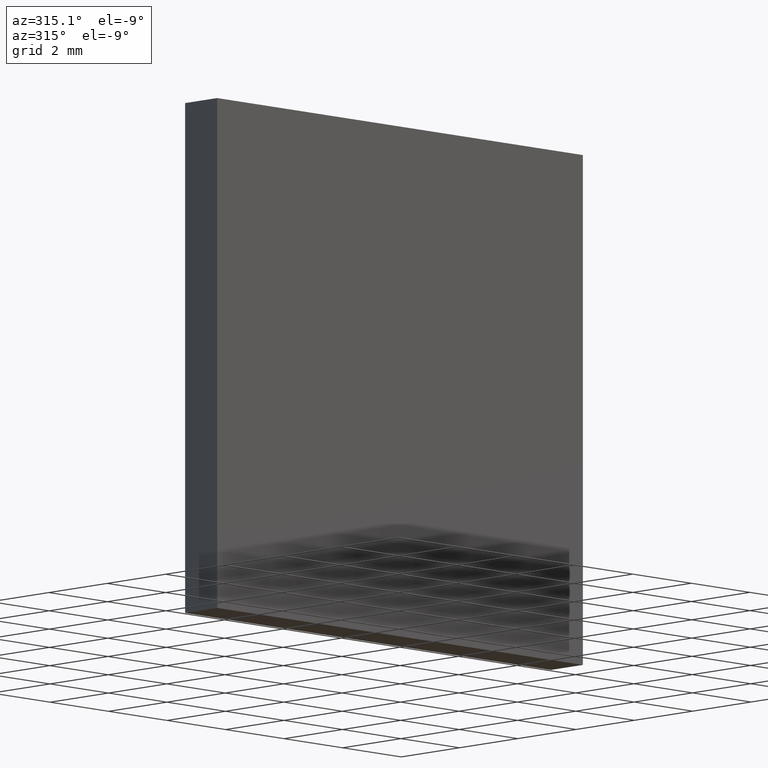
[diagram: clean part render]
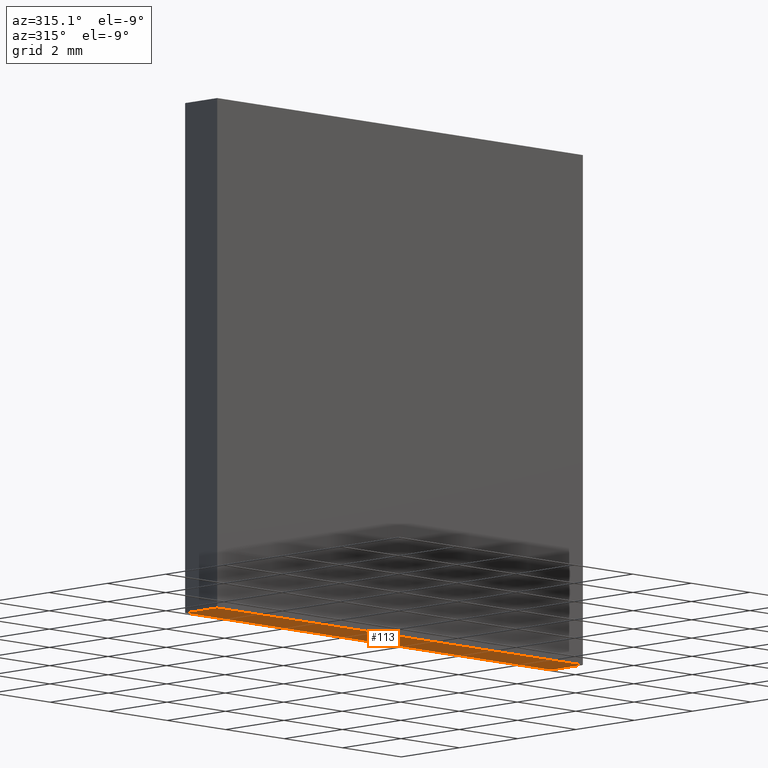
[diagram: same view with one face highlighted and labeled with its STEP entity id]
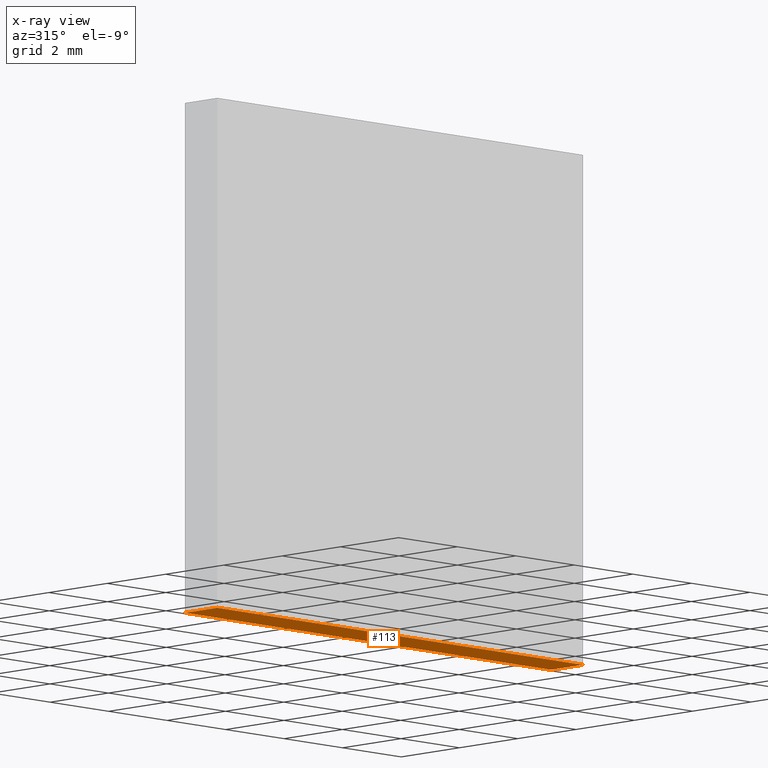
[diagram: x-ray of the same camera — body ghosted, the highlighted face saturated]
A machine part, auxiliary view. The second image highlights one B-rep face of the part: STEP entity #113.
The next image is the same camera in x-ray: the body ghosted, the highlighted face saturated — about 0% of this face is hidden behind the body in this view.
In plain terms, the highlighted planar face has unit normal (0, 0, 1).
Its self-contained STEP definition (entity closure, byte-faithful):
#9 = CARTESIAN_POINT ( 'NONE',  ( -6.250000000000002700, 0.0000000000000000000, -6.250000000000001800 ) ) ;
#11 = CARTESIAN_POINT ( 'NONE',  ( -6.250000000000002700, 1.100000000000000100, -6.250000000000001800 ) ) ;
#19 = CARTESIAN_POINT ( 'NONE',  ( -6.250000000000002700, 1.100000000000000100, -6.250000000000001800 ) ) ;
#25 = VERTEX_POINT ( 'NONE', #94 ) ;
#30 = EDGE_CURVE ( 'NONE', #100, #86, #78, .T. ) ;
#39 = ORIENTED_EDGE ( 'NONE', *, *, #30, .T. ) ;
#40 = CARTESIAN_POINT ( 'NONE',  ( -6.250000000000002700, 1.100000000000000100, -6.250000000000001800 ) ) ;
#41 = LINE ( 'NONE', #11, #104 ) ;
#42 = CARTESIAN_POINT ( 'NONE',  ( 6.249999999999997300, 0.0000000000000000000, -6.250000000000001800 ) ) ;
#50 = CARTESIAN_POINT ( 'NONE',  ( -6.250000000000002700, 0.0000000000000000000, -6.250000000000001800 ) ) ;
#54 = DIRECTION ( 'NONE',  ( -0.0000000000000000000, -1.000000000000000000, -0.0000000000000000000 ) ) ;
#63 = DIRECTION ( 'NONE',  ( 0.0000000000000000000, 0.0000000000000000000, 1.000000000000000000 ) ) ;
#66 = EDGE_CURVE ( 'NONE', #100, #25, #184, .T. ) ;
#69 = VERTEX_POINT ( 'NONE', #9 ) ;
#72 = ORIENTED_EDGE ( 'NONE', *, *, #84, .F. ) ;
#78 = LINE ( 'NONE', #182, #165 ) ;
#79 = DIRECTION ( 'NONE',  ( 1.000000000000000000, 0.0000000000000000000, -0.0000000000000000000 ) ) ;
#84 = EDGE_CURVE ( 'NONE', #25, #69, #41, .T. ) ;
#86 = VERTEX_POINT ( 'NONE', #42 ) ;
#90 = EDGE_LOOP ( 'NONE', ( #171, #72, #190, #39 ) ) ;
#91 = EDGE_CURVE ( 'NONE', #86, #69, #162, .T. ) ;
#94 = CARTESIAN_POINT ( 'NONE',  ( -6.250000000000002700, 1.100000000000000100, -6.250000000000001800 ) ) ;
#99 = FACE_OUTER_BOUND ( 'NONE', #90, .T. ) ;
#100 = VERTEX_POINT ( 'NONE', #146 ) ;
#103 = AXIS2_PLACEMENT_3D ( 'NONE', #19, #63, #79 ) ;
#104 = VECTOR ( 'NONE', #105, 1000.000000000000000 ) ;
#105 = DIRECTION ( 'NONE',  ( -0.0000000000000000000, -1.000000000000000000, -0.0000000000000000000 ) ) ;
#113 = ADVANCED_FACE ( 'NONE', ( #99 ), #116, .F. ) ;
#116 = PLANE ( 'NONE',  #103 ) ;
#129 = DIRECTION ( 'NONE',  ( -1.000000000000000000, -0.0000000000000000000, -0.0000000000000000000 ) ) ;
#131 = VECTOR ( 'NONE', #129, 1000.000000000000000 ) ;
#146 = CARTESIAN_POINT ( 'NONE',  ( 6.249999999999997300, 1.100000000000000100, -6.250000000000001800 ) ) ;
#162 = LINE ( 'NONE', #50, #131 ) ;
#164 = DIRECTION ( 'NONE',  ( -1.000000000000000000, -0.0000000000000000000, -0.0000000000000000000 ) ) ;
#165 = VECTOR ( 'NONE', #54, 1000.000000000000000 ) ;
#171 = ORIENTED_EDGE ( 'NONE', *, *, #91, .T. ) ;
#182 = CARTESIAN_POINT ( 'NONE',  ( 6.249999999999997300, 1.100000000000000100, -6.250000000000001800 ) ) ;
#184 = LINE ( 'NONE', #40, #188 ) ;
#188 = VECTOR ( 'NONE', #164, 1000.000000000000000 ) ;
#190 = ORIENTED_EDGE ( 'NONE', *, *, #66, .F. ) ;